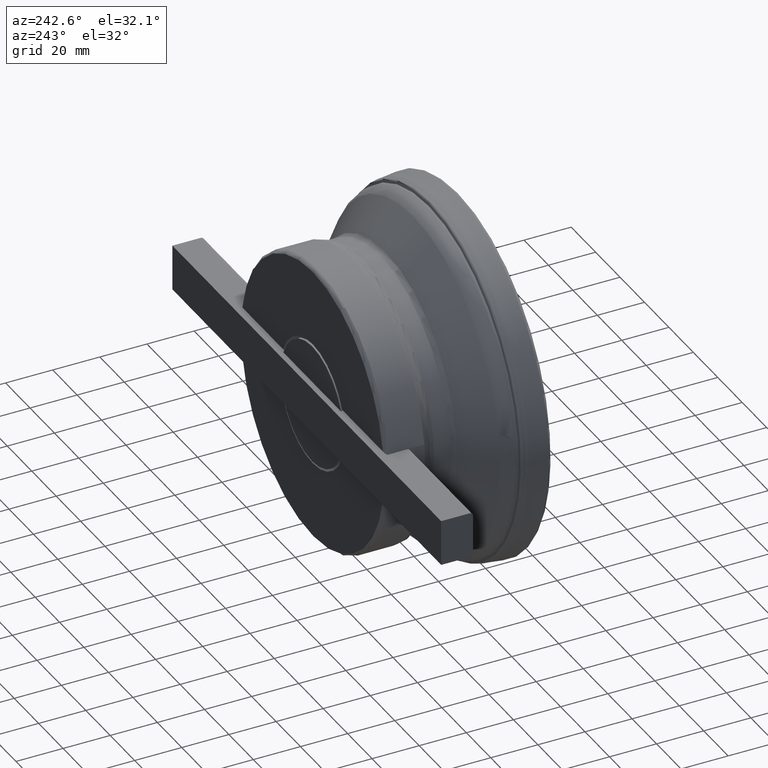
[diagram: clean part render]
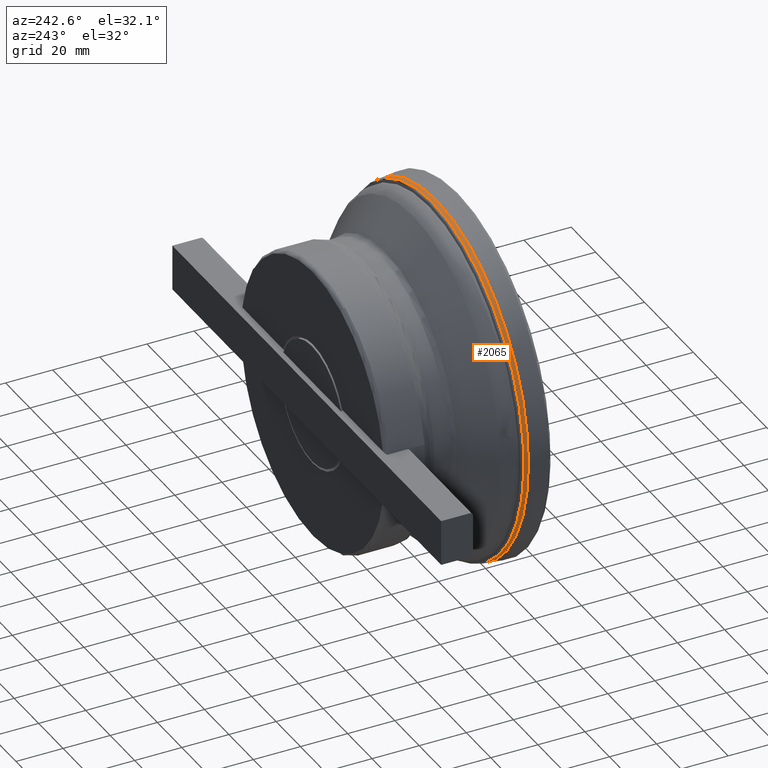
[diagram: same view with one face highlighted and labeled with its STEP entity id]
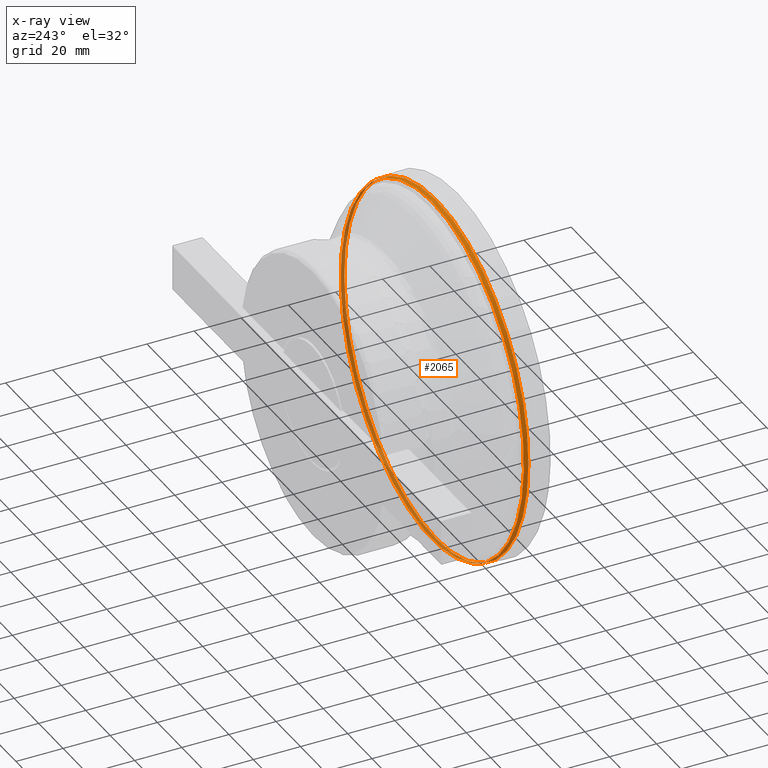
[diagram: x-ray of the same camera — body ghosted, the highlighted face saturated]
A machine part, auxiliary view. The second image highlights one B-rep face of the part: STEP entity #2065.
The next image is the same camera in x-ray: the body ghosted, the highlighted face saturated — about 42% of this face is hidden behind the body in this view.
In plain terms, the highlighted face is a SurfaceOfRevolution surface.
Its self-contained STEP definition (entity closure, byte-faithful):
#499=SURFACE_OF_REVOLUTION('',#1124,#523);
#523=AXIS1_PLACEMENT('',#9636,#8113);
#1124=B_SPLINE_CURVE_WITH_KNOTS('',3,(#9632,#9633,#9634,#9635),
 .UNSPECIFIED.,.F.,.F.,(4,4),(0.,1.),.UNSPECIFIED.);
#2065=ADVANCED_FACE('',(#2601,#2602),#499,.T.);
#2601=FACE_BOUND('',#2799,.T.);
#2602=FACE_BOUND('',#2800,.T.);
#2799=EDGE_LOOP('',(#3473));
#2800=EDGE_LOOP('',(#3474));
#3473=ORIENTED_EDGE('',*,*,#6135,.F.);
#3474=ORIENTED_EDGE('',*,*,#6134,.T.);
#5446=VERTEX_POINT('',#9624);
#5447=VERTEX_POINT('',#9631);
#6134=EDGE_CURVE('',#5446,#5446,#7130,.T.);
#6135=EDGE_CURVE('',#5447,#5447,#7131,.T.);
#7130=CIRCLE('',#7454,75.3374281150488);
#7131=CIRCLE('',#7455,75.0312935021916);
#7454=AXIS2_PLACEMENT_3D('',#9623,#8108,#8109);
#7455=AXIS2_PLACEMENT_3D('',#9630,#8111,#8112);
#8108=DIRECTION('',(0.,1.,0.));
#8109=DIRECTION('',(0.,0.,1.));
#8111=DIRECTION('',(0.,1.,0.));
#8112=DIRECTION('',(0.,0.,1.));
#8113=DIRECTION('',(0.,1.,0.));
#9623=CARTESIAN_POINT('',(0.,10.5260621758159,0.));
#9624=CARTESIAN_POINT('',(0.,10.5260621758159,75.3374281150488));
#9630=CARTESIAN_POINT('',(0.,12.2726431788867,0.));
#9631=CARTESIAN_POINT('',(0.,12.2726431788867,75.0312935021916));
#9632=CARTESIAN_POINT('',(73.467594729872,10.5260621758159,16.6805455425605));
#9633=CARTESIAN_POINT('',(73.4010749386794,11.1072441559266,16.5077012657902));
#9634=CARTESIAN_POINT('',(73.3344798461283,11.6888456324071,16.3363577019291));
#9635=CARTESIAN_POINT('',(73.2674860019483,12.2726431788867,16.1731413017487));
#9636=CARTESIAN_POINT('',(0.,0.,0.));